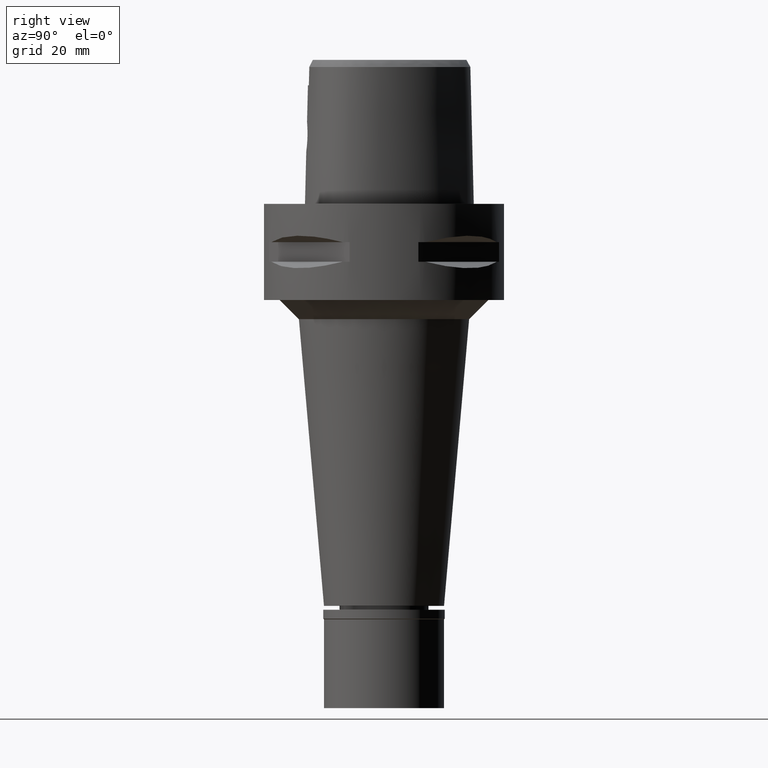
[diagram: clean part render]
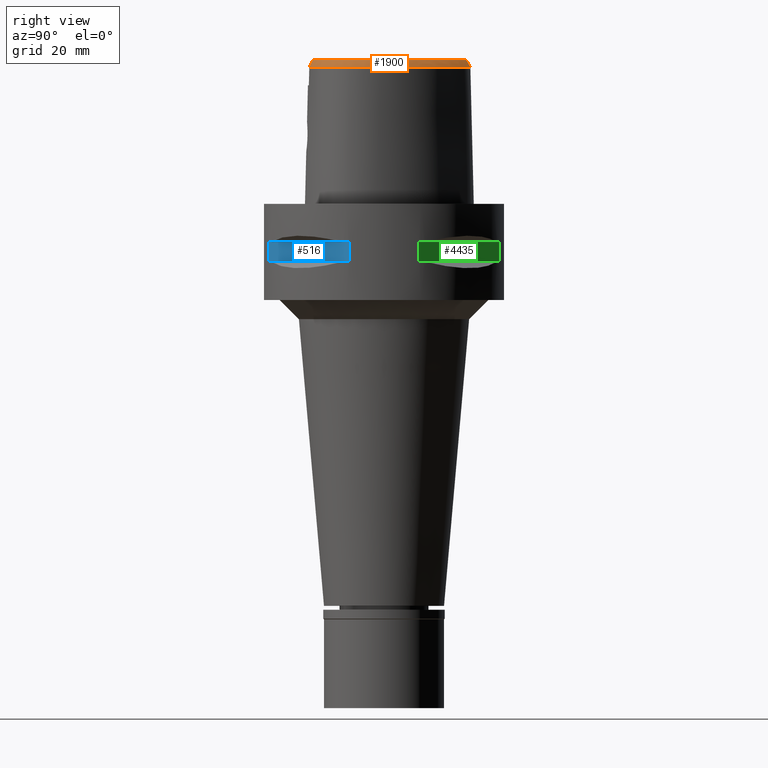
[diagram: same view with three faces highlighted in distinct colors, each labeled with its STEP entity id]
A machine part, right view with three faces highlighted in distinct colors.
Their STEP definitions:

[orange] entity #1900 — the highlighted face is a freeform B-spline surface patch.
#3 = B_SPLINE_CURVE_WITH_KNOTS ( 'NONE', 3,
 ( #450, #1910, #1174, #3045, #43, #3144, #3451, #1985, #1574, #405, #4955, #3522, #3097, #67, #4932, #1501, #4230, #2337, #3854, #1601, #4209, #4648, #1933, #1225, #3474, #1959, #15, #3500, #1551, #4549, #2767, #849, #1128, #3792, #525, #1700, #95, #899, #169, #3548, #3596, #926, #3619, #4355, #4750, #2414, #3218, #1630, #3245, #1727, #873, #2490, #1326, #3961 ),
 .UNSPECIFIED., .F., .F.,
 ( 4, 1, 1, 1, 1, 1, 1, 1, 1, 1, 1, 1, 1, 1, 1, 1, 1, 1, 1, 1, 1, 1, 1, 1, 1, 1, 1, 1, 1, 1, 1, 1, 1, 1, 1, 1, 1, 1, 1, 1, 1, 1, 1, 1, 1, 1, 1, 1, 1, 1, 1, 4 ),
 ( 0.0000000000000000000, 0.01988587058640001182, 0.03977174117009996124, 0.05965761175399997285, 0.07954348233780006439, 0.09942935292160004490, 0.1193152235055000565, 0.1392010940893000370, 0.1590869646731999376, 0.1789728352568999981, 0.1988587058408000097, 0.2187445764247000213, 0.2386304470083999707, 0.2585163175922999823, 0.2784021881761000738, 0.2982880587598999433, 0.3181739293438000660, 0.3380597999276000465, 0.3579456705113999160, 0.3778315410952000075, 0.3977174116791000191, 0.4176032822630000307, 0.4374891528466999802, 0.4573750234305999918, 0.4772608940143999723, 0.4971467645981999528, 0.5170326351820999644, 0.5369185057659000559, 0.5568043763497000365, 0.5766902469335999371, 0.5965761175174000286, 0.6164619881012000091, 0.6363478586849999896, 0.6562337292689000012, 0.6761195998528000128, 0.6960054704364999623, 0.7158913410203999739, 0.7357772116042000654, 0.7556630821880000459, 0.7755489527718999465, 0.7954348233557000381, 0.8153206939395000186, 0.8352065645232999991, 0.8550924351072000107, 0.8749783056909999912, 0.8948641762747999717, 0.9147500468586799993, 0.9346359174424899718, 0.9545217880263200394, 0.9744076586101599879, 0.9942935291939859477, 1.000000000000000000 ),
 .UNSPECIFIED. ) ;
#7 = CARTESIAN_POINT ( 'NONE',  ( 15.91430228108000122, -5.139359301686000414, 30.15407868375999811 ) ) ;
#15 = CARTESIAN_POINT ( 'NONE',  ( 16.04058509949770794, -1.654113685488216356, 30.00000000000141398 ) ) ;
#37 = CARTESIAN_POINT ( 'NONE',  ( 12.81197658943000128, -11.31650483291000064, 29.55824618713999996 ) ) ;
#43 = CARTESIAN_POINT ( 'NONE',  ( 1.774127352510726174, 16.97169788998927586, 29.99999999999994316 ) ) ;
#62 = CARTESIAN_POINT ( 'NONE',  ( 16.13409343984999822, -8.081781199147000549, 28.36658167661000007 ) ) ;
#67 = CARTESIAN_POINT ( 'NONE',  ( 8.557117433366636661, 13.07415149352891426, 30.00000000000866152 ) ) ;
#89 = CARTESIAN_POINT ( 'NONE',  ( 15.95648969127000072, 1.814829198058999893, 28.96241601011999833 ) ) ;
#95 = CARTESIAN_POINT ( 'NONE',  ( 14.76450668991128801, -8.742560395149638452, 29.99999999999834799 ) ) ;
#100 = CARTESIAN_POINT ( 'NONE',  ( 1.893775678555451591, 17.84807068955595355, 28.52071728562181363 ) ) ;
#113 = CARTESIAN_POINT ( 'NONE',  ( 3.168920890822999770, -15.55911073834000113, 28.52071374672999582 ) ) ;
#119 = CARTESIAN_POINT ( 'NONE',  ( 13.18435550465999917, 8.170105408592000629, 28.96241377043999776 ) ) ;
#139 = CARTESIAN_POINT ( 'NONE',  ( 10.97901227322000040, 11.83294304592999957, 28.36658077818000123 ) ) ;
#164 = CARTESIAN_POINT ( 'NONE',  ( 11.84929922629000032, 10.74329039526000074, 28.36658204688999874 ) ) ;
#169 = CARTESIAN_POINT ( 'NONE',  ( 14.08238499151560852, -9.704590128438134400, 29.99999999999810285 ) ) ;
#194 = CARTESIAN_POINT ( 'NONE',  ( 9.844628175403999037, 12.60407160398000137, 28.96241491580000016 ) ) ;
#212 = EDGE_CURVE ( 'NONE', #2106, #3915, #3780, .T. ) ;
#218 = CARTESIAN_POINT ( 'NONE',  ( 3.383476029290000575, 17.46870730969000007, 28.36658027637000146 ) ) ;
#241 = CARTESIAN_POINT ( 'NONE',  ( 5.215080825197000003, 15.51145568495999960, 30.15407808469000273 ) ) ;
#248 = CARTESIAN_POINT ( 'NONE',  ( 5.428381937650000211, -14.27076979755000075, 30.15407858473999880 ) ) ;
#267 = CARTESIAN_POINT ( 'NONE',  ( 3.160809015964000324, 16.83882576526000108, 29.55824595098000174 ) ) ;
#297 = CARTESIAN_POINT ( 'NONE',  ( 7.012604648593999457, 14.71247543225999976, 29.55824605892000179 ) ) ;
#351 = CARTESIAN_POINT ( 'NONE',  ( 13.13281598880000089, -10.59164594259999959, 30.15407870514999900 ) ) ;
#374 = CARTESIAN_POINT ( 'NONE',  ( 3.168920890822999770, -15.55911073834000113, 28.52071374672999582 ) ) ;
#379 = CARTESIAN_POINT ( 'NONE',  ( 10.14452914293000063, -13.75446132488999851, 28.36658104380999745 ) ) ;
#399 = CARTESIAN_POINT ( 'NONE',  ( 14.79130700836000045, -10.28435368790000126, 28.36658182771999748 ) ) ;
#405 = CARTESIAN_POINT ( 'NONE',  ( 5.258649622038655380, 15.58603480843283151, 30.00000000000263611 ) ) ;
#420 = CARTESIAN_POINT ( 'NONE',  ( 12.60044439268000005, -11.05798099779000054, 30.15407870591999995 ) ) ;
#446 = CARTESIAN_POINT ( 'NONE',  ( 15.94987067560000149, -6.600486010367999867, 29.55824620219000209 ) ) ;
#450 = CARTESIAN_POINT ( 'NONE',  ( -6.301949014264000276E-11, 17.15328888647999861, 30.00000000000000000 ) ) ;
#470 = CARTESIAN_POINT ( 'NONE',  ( 16.36010767631000107, -2.616259737226000137, 29.55824622051000006 ) ) ;
#496 = CARTESIAN_POINT ( 'NONE',  ( 13.93260368992000053, 5.340930254399999910, 30.15407859711000071 ) ) ;
#520 = CARTESIAN_POINT ( 'NONE',  ( 15.09777619041000030, 4.331318817803000876, 28.96241365072999940 ) ) ;
#525 = CARTESIAN_POINT ( 'NONE',  ( 15.29323375805110707, -7.718923543002465415, 30.00000000000203215 ) ) ;
#527 = CARTESIAN_POINT ( 'NONE',  ( 8.702202469521859385, -14.36510984286242198, 28.52071728562181363 ) ) ;
#543 = CARTESIAN_POINT ( 'NONE',  ( 15.60499018215000078, 0.4731725286960000165, 30.15407831529000049 ) ) ;
#550 = CARTESIAN_POINT ( 'NONE',  ( 5.902447799197284795, -15.16907841529120837, 28.52071728562181363 ) ) ;
#567 = CARTESIAN_POINT ( 'NONE',  ( 9.357945530369999432, 12.14659526151999991, 30.15407852067999883 ) ) ;
#577 = CARTESIAN_POINT ( 'NONE',  ( 14.26907046693000503, -10.79012245165138495, 28.52071728562181363 ) ) ;
#593 = CARTESIAN_POINT ( 'NONE',  ( -0.5038152959246000595, 17.72087689082000139, 28.96241354523999689 ) ) ;
#615 = CARTESIAN_POINT ( 'NONE',  ( 2.389428973483999741, 16.73242853384000028, 30.15407870972000026 ) ) ;
#619 = CARTESIAN_POINT ( 'NONE',  ( 2.159313520159999999, -15.74463305179000017, 28.36658222512000194 ) ) ;
#639 = CARTESIAN_POINT ( 'NONE',  ( 0.04122661012738000619, 17.74030538783000210, 28.96241393928999841 ) ) ;
#665 = CARTESIAN_POINT ( 'NONE',  ( 6.000047752153999880, 15.02174448993999967, 30.15407832633000140 ) ) ;
#670 = CARTESIAN_POINT ( 'NONE',  ( 1.921314711713999923, -14.75780509900000048, 30.15407860641999704 ) ) ;
#689 = CARTESIAN_POINT ( 'NONE',  ( 4.460649862008999378, 15.92057661127000223, 30.15407820509999937 ) ) ;
#695 = CARTESIAN_POINT ( 'NONE',  ( 2.402689161809000051, -15.05499184518000000, 29.55824647528000426 ) ) ;
#718 = CARTESIAN_POINT ( 'NONE',  ( 11.04258369411999929, -13.29902387570999878, 28.36658122038000229 ) ) ;
#743 = CARTESIAN_POINT ( 'NONE',  ( 15.21391633644000052, -7.684695556669000283, 30.15407865619999939 ) ) ;
#768 = CARTESIAN_POINT ( 'NONE',  ( 11.67631721836000125, -12.54102736115000027, 28.96241416311999828 ) ) ;
#788 = CARTESIAN_POINT ( 'NONE',  ( 14.08995125574000085, -10.57905260332000097, 28.96241371908999795 ) ) ;
#814 = CARTESIAN_POINT ( 'NONE',  ( 15.19471045176999979, -9.754247342593000525, 28.36658117308999749 ) ) ;
#844 = CARTESIAN_POINT ( 'NONE',  ( 14.53809603510999793, 5.622878141590999412, 28.96241440105999843 ) ) ;
#849 = CARTESIAN_POINT ( 'NONE',  ( 15.87349190488083650, -5.869792298897619887, 29.99999999999832312 ) ) ;
#869 = CARTESIAN_POINT ( 'NONE',  ( 14.93859902518999938, 2.841171373471999662, 30.15407869128999963 ) ) ;
#873 = CARTESIAN_POINT ( 'NONE',  ( 4.159771979225014071, -14.59766906204359316, 29.99999999999851497 ) ) ;
#896 = CARTESIAN_POINT ( 'NONE',  ( 11.04976626668999984, 10.13953577488999969, 30.15407862126999916 ) ) ;
#899 = CARTESIAN_POINT ( 'NONE',  ( 14.44767169633080606, -9.224476417585231403, 30.00000000000371259 ) ) ;
#923 = CARTESIAN_POINT ( 'NONE',  ( 16.14621040167000032, -0.5738622940973999720, 29.55824652089000182 ) ) ;
#926 = CARTESIAN_POINT ( 'NONE',  ( 12.65514534656690593, -11.12483370674301852, 30.00000000000713385 ) ) ;
#944 = CARTESIAN_POINT ( 'NONE',  ( 10.46825799353999997, 11.40252286788999925, 29.55824608668999787 ) ) ;
#963 = CARTESIAN_POINT ( 'NONE',  ( 2.406543924163999648, -14.80491841401999942, 30.00000000000000000 ) ) ;
#970 = CARTESIAN_POINT ( 'NONE',  ( -0.4664088574765000161, 17.05435606281000105, 30.15407872419000057 ) ) ;
#998 = CARTESIAN_POINT ( 'NONE',  ( 3.049475509300000109, 16.52388499305000380, 30.15407878827999966 ) ) ;
#1002 = CARTESIAN_POINT ( 'NONE',  ( 1.993461990580000176, -15.75661528648000065, 28.36658220430999933 ) ) ;
#1017 = CARTESIAN_POINT ( 'NONE',  ( 8.497542471117998986, 13.01162469015999967, 30.15407844522000147 ) ) ;
#1021 = CARTESIAN_POINT ( 'NONE',  ( 7.862478987798000141, -13.94903460971000086, 29.55824710405000033 ) ) ;
#1040 = CARTESIAN_POINT ( 'NONE',  ( 7.214083366962999122, 14.97885317438000108, 28.96241336721000081 ) ) ;
#1069 = CARTESIAN_POINT ( 'NONE',  ( 8.958303088264999658, 13.49521523592999905, 28.96241542395000224 ) ) ;
#1084 = LINE ( 'NONE', #3352, #4738 ) ;
#1096 = CARTESIAN_POINT ( 'NONE',  ( 16.38070149625000127, -7.453169724490000370, 28.36658156601999892 ) ) ;
#1120 = CARTESIAN_POINT ( 'NONE',  ( 15.26129976988999992, -9.045301807557001084, 28.96241384740999791 ) ) ;
#1128 = CARTESIAN_POINT ( 'NONE',  ( 15.71128456931854878, -6.534031654963371238, 30.00000000000700595 ) ) ;
#1146 = CARTESIAN_POINT ( 'NONE',  ( 16.11594076741999615, -5.920336784746999648, 29.55824617406000243 ) ) ;
#1170 = CARTESIAN_POINT ( 'NONE',  ( 15.85639389654000198, -8.667834654316999732, 28.36658093752999932 ) ) ;
#1174 = CARTESIAN_POINT ( 'NONE',  ( 0.5691917915716266929, 17.14006060249510455, 30.00000000000938627 ) ) ;
#1191 = CARTESIAN_POINT ( 'NONE',  ( 13.36076634381999995, -10.83582889382999959, 29.55824618934000014 ) ) ;
#1219 = CARTESIAN_POINT ( 'NONE',  ( 16.69376750319000280, -2.601106877469999912, 28.96241374674999847 ) ) ;
#1225 = CARTESIAN_POINT ( 'NONE',  ( 15.39668103801475496, 1.657188505494441966, 30.00000000000181899 ) ) ;
#1247 = CARTESIAN_POINT ( 'NONE',  ( 15.93098836738999680, 0.5457449380141000672, 29.55824730707999848 ) ) ;
#1255 = CARTESIAN_POINT ( 'NONE',  ( 3.168920890822999770, -15.55911073834000113, 28.52071374672999582 ) ) ;
#1271 = CARTESIAN_POINT ( 'NONE',  ( 16.37308080689999912, -3.537239819178999767, 29.55824629298999895 ) ) ;
#1294 = CARTESIAN_POINT ( 'NONE',  ( 15.95468759978999707, -1.663126806178000017, 30.15407874414999867 ) ) ;
#1322 = CARTESIAN_POINT ( 'NONE',  ( 11.58278823975999927, 10.54203885513999950, 28.96241423835000006 ) ) ;
#1326 = CARTESIAN_POINT ( 'NONE',  ( 2.538962679605336614, -14.79292722369346436, 30.00000000000666844 ) ) ;
#1329 = CARTESIAN_POINT ( 'NONE',  ( 16.99625257117403265, -3.273868232426961900, 28.52071728562181363 ) ) ;
#1336 = ORIENTED_EDGE ( 'NONE', *, *, #1469, .T. ) ;
#1344 = CARTESIAN_POINT ( 'NONE',  ( 1.756358066223999925, 16.88715977208000041, 30.15407866062999886 ) ) ;
#1362 = CARTESIAN_POINT ( 'NONE',  ( 7.861473047930999769, 14.03242588091999998, 29.55824637717999792 ) ) ;
#1371 = CARTESIAN_POINT ( 'NONE',  ( 1.969412897624000180, -15.42367855732000059, 28.96241433835000123 ) ) ;
#1394 = CARTESIAN_POINT ( 'NONE',  ( 0.5631390755234999546, 17.05388319361000171, 30.15407871233000137 ) ) ;
#1399 = CARTESIAN_POINT ( 'NONE',  ( 7.968578480114000939, -14.26571451727999928, 28.96241582199999698 ) ) ;
#1419 = CARTESIAN_POINT ( 'NONE',  ( 6.185542694173999934, 15.29949969616999894, 29.55824727542999852 ) ) ;
#1425 = CARTESIAN_POINT ( 'NONE',  ( 8.908154874860001016, -13.56419839624000012, 29.55824622800999890 ) ) ;
#1445 = CARTESIAN_POINT ( 'NONE',  ( 5.552047647558000065, 16.08826046437000201, 28.96241785176000150 ) ) ;
#1451 = CARTESIAN_POINT ( 'NONE',  ( 2.462229345737000141, -15.71997111639000089, 28.36658221499000021 ) ) ;
#1469 = EDGE_CURVE ( 'NONE', #1884, #2774, #1084, .T. ) ;
#1476 = CARTESIAN_POINT ( 'NONE',  ( 5.569394667004999633, -14.92365235324999873, 28.96241448438000177 ) ) ;
#1494 = CARTESIAN_POINT ( 'NONE',  ( 14.37720430538999850, -9.174503675729001273, 30.15407870369999799 ) ) ;
#1501 = CARTESIAN_POINT ( 'NONE',  ( 10.27891984617860821, 11.24296481357842303, 29.99999999999540279 ) ) ;
#1515 = CARTESIAN_POINT ( 'NONE',  ( 14.69073428896999900, -8.697604131147999240, 30.15407867931999775 ) ) ;
#1543 = CARTESIAN_POINT ( 'NONE',  ( 16.24503527206000086, -5.186198137593000190, 29.55824625062999900 ) ) ;
#1551 = CARTESIAN_POINT ( 'NONE',  ( 16.12546998862469394, -3.533461825553787072, 30.00000000000701661 ) ) ;
#1559 = ORIENTED_EDGE ( 'NONE', *, *, #1621, .T. ) ;
#1569 = CARTESIAN_POINT ( 'NONE',  ( 13.02350878617999896, -11.57502866801999986, 28.96241366834999909 ) ) ;
#1574 = CARTESIAN_POINT ( 'NONE',  ( 4.499552315895782861, 15.99769543814334760, 30.00000000000113332 ) ) ;
#1595 = CARTESIAN_POINT ( 'NONE',  ( 15.78892849896999806, -5.852162957070000004, 30.15407871046999944 ) ) ;
#1601 = CARTESIAN_POINT ( 'NONE',  ( 13.38374903490633017, 6.636915464740512860, 30.00000000000369482 ) ) ;
#1621 = EDGE_CURVE ( 'NONE', #2774, #3915, #3, .T. ) ;
#1625 = CARTESIAN_POINT ( 'NONE',  ( 15.31355099840000022, 1.633779297828000132, 30.15407835817000048 ) ) ;
#1630 = CARTESIAN_POINT ( 'NONE',  ( 7.783816186093504896, -13.71424622166772878, 30.00000000000591527 ) ) ;
#1635 = CARTESIAN_POINT ( 'NONE',  ( 15.58740368722525993, -8.999391713747247223, 28.52071728562181363 ) ) ;
#1644 = CARTESIAN_POINT ( 'NONE',  ( 2.935843368221050742, -15.25651436817058304, 29.10537844849506328 ) ) ;
#1649 = CARTESIAN_POINT ( 'NONE',  ( 13.47058952121999909, 8.342147043526999539, 28.36658131027999730 ) ) ;
#1670 = CARTESIAN_POINT ( 'NONE',  ( 16.28685889694999744, -1.628272473965999945, 29.55824607750999888 ) ) ;
#1697 = CARTESIAN_POINT ( 'NONE',  ( 12.40867009011000199, 9.386625274047000644, 28.96241457396999763 ) ) ;
#1700 = CARTESIAN_POINT ( 'NONE',  ( 15.04259016984798336, -8.247723288182914558, 30.00000000000509459 ) ) ;
#1722 = CARTESIAN_POINT ( 'NONE',  ( 6.811125930223999703, 14.44609769012999934, 30.15407875062999921 ) ) ;
#1727 = CARTESIAN_POINT ( 'NONE',  ( 5.446614459517546969, -14.35518554872550112, 30.00000000000447642 ) ) ;
#1744 = CARTESIAN_POINT ( 'NONE',  ( 2.570269608630999958, 17.37558561570999771, 28.96241364277999963 ) ) ;
#1767 = CARTESIAN_POINT ( 'NONE',  ( 3.272142522627000449, 17.15376653747999924, 28.96241311366999938 ) ) ;
#1773 = CARTESIAN_POINT ( 'NONE',  ( 6.811844329970999645, -14.61865163763999931, 28.96241629070999934 ) ) ;
#1798 = CARTESIAN_POINT ( 'NONE',  ( 9.188683396838001727, 13.73701050881000008, 28.36658391331999951 ) ) ;
#1804 = CARTESIAN_POINT ( 'NONE',  ( 4.198902476121999072, -14.84216049075999955, 29.55824607314000119 ) ) ;
#1826 = CARTESIAN_POINT ( 'NONE',  ( 1.288469511060999828, 17.98539265883000127, 28.36658101920999897 ) ) ;
#1830 = CARTESIAN_POINT ( 'NONE',  ( 2.372919069846000095, -14.72250220956999911, 30.15407860542000051 ) ) ;
#1856 = ORIENTED_EDGE ( 'NONE', *, *, #2583, .F. ) ;
#1883 = CARTESIAN_POINT ( 'NONE',  ( 13.81666705385000071, -11.32419479630999959, 28.36658115774000066 ) ) ;
#1884 = VERTEX_POINT ( 'NONE', #2590 ) ;
#1900 = ADVANCED_FACE ( 'NONE', ( #2907 ), #2924, .F. ) ;
#1904 = CARTESIAN_POINT ( 'NONE',  ( 10.88296552541000040, -13.00562535788999874, 28.96241371332999748 ) ) ;
#1910 = CARTESIAN_POINT ( 'NONE',  ( 0.1912597614439600635, 17.15328888648557637, 30.00000000000241229 ) ) ;
#1925 = CARTESIAN_POINT ( 'NONE',  ( 14.96582490842000190, -8.208094618771999862, 30.15407872591999805 ) ) ;
#1933 = CARTESIAN_POINT ( 'NONE',  ( 15.02033012161492920, 2.869071121502117627, 30.00000000000621014 ) ) ;
#1954 = CARTESIAN_POINT ( 'NONE',  ( 9.718987881621000469, -12.84732019325000074, 30.15407871589000166 ) ) ;
#1959 = CARTESIAN_POINT ( 'NONE',  ( 15.90185233182547009, -0.6139199331565184936, 29.99999999999838707 ) ) ;
#1979 = CARTESIAN_POINT ( 'NONE',  ( 12.38812374618999890, -12.06281744228000008, 28.96241427910000255 ) ) ;
#1985 = CARTESIAN_POINT ( 'NONE',  ( 3.772905803807292013, 16.33508552419415594, 30.00000000000188294 ) ) ;
#2004 = CARTESIAN_POINT ( 'NONE',  ( 12.89812148811000014, 7.998063773655999853, 29.55824623060000178 ) ) ;
#2014 = CARTESIAN_POINT ( 'NONE',  ( 13.75951381385860905, 7.944084035686260314, 28.52071728562181363 ) ) ;
#2033 = CARTESIAN_POINT ( 'NONE',  ( 14.23534986251999968, 5.481904197996000150, 29.55824649909000357 ) ) ;
#2057 = CARTESIAN_POINT ( 'NONE',  ( 14.78797335495000098, 4.206605546866000189, 29.55824617963000023 ) ) ;
#2065 = CARTESIAN_POINT ( 'NONE',  ( 3.738627708318751353, -15.49270856215235703, 28.52071728562181363 ) ) ;
#2079 = CARTESIAN_POINT ( 'NONE',  ( 13.30749001700000100, 6.596386971987000081, 30.15407865690999856 ) ) ;
#2104 = CARTESIAN_POINT ( 'NONE',  ( 11.31627725322000089, 10.34078731500999915, 29.55824642981000494 ) ) ;
#2106 = VERTEX_POINT ( 'NONE', #374 ) ;
#2154 = CARTESIAN_POINT ( 'NONE',  ( 1.893788070486999819, 17.54098872825000299, 28.96241397330000211 ) ) ;
#2160 = CARTESIAN_POINT ( 'NONE',  ( 3.159662705975999852, -14.98063178832999931, 29.55824639852000146 ) ) ;
#2185 = CARTESIAN_POINT ( 'NONE',  ( 4.251681245310000357, -15.17192774925000087, 28.96241340061000358 ) ) ;
#2206 = CARTESIAN_POINT ( 'NONE',  ( 4.133094771460999794, 17.17698384790000077, 28.36658225872000116 ) ) ;
#2229 = CARTESIAN_POINT ( 'NONE',  ( 4.611088217191000815, 16.21880020154000235, 29.55824762300000330 ) ) ;
#2257 = CARTESIAN_POINT ( 'NONE',  ( 14.33363786215999980, -10.80754698553000104, 28.36658122945000216 ) ) ;
#2284 = CARTESIAN_POINT ( 'NONE',  ( 10.56372918797999994, -12.41882832223999955, 30.15407869922999851 ) ) ;
#2308 = CARTESIAN_POINT ( 'NONE',  ( 12.58270304915000004, -12.33431788868000112, 28.36658211105000049 ) ) ;
#2329 = CARTESIAN_POINT ( 'NONE',  ( 16.57576826304999784, -5.233036973501000055, 28.96241381748999899 ) ) ;
#2337 = CARTESIAN_POINT ( 'NONE',  ( 11.92667412981768393, 9.061218325782252947, 29.99999999999914380 ) ) ;
#2357 = CARTESIAN_POINT ( 'NONE',  ( 15.54658251034999950, -9.219150645760999296, 28.36658143146000199 ) ) ;
#2385 = CARTESIAN_POINT ( 'NONE',  ( 16.95120149128000264, -1.558563809543999978, 28.36658074421000109 ) ) ;
#2393 = CARTESIAN_POINT ( 'NONE',  ( 4.422474504766133130, 17.08283549833607395, 28.52071728562181363 ) ) ;
#2409 = CARTESIAN_POINT ( 'NONE',  ( 16.33260288691000284, -4.393036603344000035, 29.55824649973000007 ) ) ;
#2414 = CARTESIAN_POINT ( 'NONE',  ( 9.755668685252240735, -12.92551394022894584, 30.00000000000078515 ) ) ;
#2439 = CARTESIAN_POINT ( 'NONE',  ( 15.25465856603999981, 2.949061539368999618, 29.55824622907999810 ) ) ;
#2450 = CARTESIAN_POINT ( 'NONE',  ( 7.523733068098669818, 15.26501041873698483, 28.52071728562181363 ) ) ;
#2463 = CARTESIAN_POINT ( 'NONE',  ( 16.80538517277999944, -0.4658037181134999649, 28.36658238365999907 ) ) ;
#2472 = CARTESIAN_POINT ( 'NONE',  ( 16.79165444020004472, -0.3537785292841048035, 28.52071728562181363 ) ) ;
#2485 = CARTESIAN_POINT ( 'NONE',  ( 10.72363513338000018, 11.61773295691000030, 28.96241343243000088 ) ) ;
#2490 = CARTESIAN_POINT ( 'NONE',  ( 3.130495111450621426, -14.73481892791945924, 30.00000000000507328 ) ) ;
#2510 = CARTESIAN_POINT ( 'NONE',  ( -0.4851120767006000256, 17.38761647681999989, 29.55824613472000095 ) ) ;
#2512 = ORIENTED_EDGE ( 'NONE', *, *, #212, .F. ) ;
#2513 = EDGE_LOOP ( 'NONE', ( #1856, #1336, #1559, #2512 ) ) ;
#2517 = CARTESIAN_POINT ( 'NONE',  ( 6.723575657282999885, -14.29655344475000156, 29.55824730359999819 ) ) ;
#2537 = CARTESIAN_POINT ( 'NONE',  ( -0.3196720322078999699, 17.39632754707999851, 29.55824623296999931 ) ) ;
#2542 = CARTESIAN_POINT ( 'NONE',  ( 2.081109065820999859, -14.74626039319000093, 30.15407860445999688 ) ) ;
#2560 = CARTESIAN_POINT ( 'NONE',  ( 0.6099515799626000767, 17.72039064241999995, 28.96241362521000084 ) ) ;
#2564 = CARTESIAN_POINT ( 'NONE',  ( 3.238344545530000396, -15.64373096935999996, 28.36658193118000071 ) ) ;
#2583 = EDGE_CURVE ( 'NONE', #1884, #2106, #2696, .T. ) ;
#2586 = CARTESIAN_POINT ( 'NONE',  ( 5.720531058737999608, 16.37666285407000188, 28.36658773530000133 ) ) ;
#2590 = CARTESIAN_POINT ( 'NONE',  ( -3.094717981753000019E-11, 17.98202997909999823, 28.52071728569000086 ) ) ;
#2613 = CARTESIAN_POINT ( 'NONE',  ( 7.645027304632999510, 13.77807092775999820, 30.15407863963000068 ) ) ;
#2618 = CARTESIAN_POINT ( 'NONE',  ( 2.133245368714000278, -15.41184216559000042, 28.96241435156999700 ) ) ;
#2638 = CARTESIAN_POINT ( 'NONE',  ( 12.19354444322000042, -11.79131699587999904, 29.55824644716000194 ) ) ;
#2659 = CARTESIAN_POINT ( 'NONE',  ( 15.26268123778999986, -8.361341297286999819, 29.55824612979000321 ) ) ;
#2689 = CARTESIAN_POINT ( 'NONE',  ( 16.44295303587999868, -5.988510612424000179, 28.96241363765000187 ) ) ;
#2696 = B_SPLINE_CURVE_WITH_KNOTS ( 'NONE', 3,
 ( #3909, #4652, #100, #2393, #2450, #3250, #2014, #3552, #2472, #1329, #4309, #3984, #2867, #1635, #3964, #577, #4382, #4678, #527, #550, #2065, #1255 ),
 .UNSPECIFIED., .F., .F.,
 ( 4, 1, 1, 1, 1, 1, 1, 1, 1, 1, 1, 1, 1, 1, 1, 1, 1, 1, 1, 4 ),
 ( 0.0000000000000000000, 0.04404152929334096550, 0.08808305858551911116, 0.1761661171698756245, 0.2642491757542321240, 0.3523322343385886790, 0.4404152929230508162, 0.5284983515074073157, 0.5725398807995856210, 0.6165814100917637042, 0.6606229393839421205, 0.6826437040300311621, 0.7046644686762260079, 0.7266852333222094673, 0.7487059979682985089, 0.7927475272605825074, 0.8367890565527607016, 0.8808305858448333137, 0.9689136444292953954, 1.000000000000000000 ),
 .UNSPECIFIED. ) ;
#2710 = CARTESIAN_POINT ( 'NONE',  ( 16.90650125403000104, -5.279875809408000720, 28.36658138435999987 ) ) ;
#2732 = CARTESIAN_POINT ( 'NONE',  ( 13.60257804291000028, -10.12206383890000083, 30.15407869837999755 ) ) ;
#2758 = CARTESIAN_POINT ( 'NONE',  ( 15.81662301611999943, -0.6278915820893998800, 30.15407858950000275 ) ) ;
#2767 = CARTESIAN_POINT ( 'NONE',  ( 15.99982784345999676, -5.151471542954396021, 29.99999999999570477 ) ) ;
#2774 = VERTEX_POINT ( 'NONE', #4432 ) ;
#2785 = CARTESIAN_POINT ( 'NONE',  ( 16.61903019410999960, -1.593418141754999962, 28.96241341086000176 ) ) ;
#2808 = CARTESIAN_POINT ( 'NONE',  ( 11.85509906030000060, 9.012896292276002086, 30.15407857143000214 ) ) ;
#2836 = CARTESIAN_POINT ( 'NONE',  ( 13.89728732156999946, 6.909839681453999738, 28.96241399838000063 ) ) ;
#2860 = CARTESIAN_POINT ( 'NONE',  ( 10.21288085369999976, 11.18731277887000175, 30.15407874094000107 ) ) ;
#2867 = CARTESIAN_POINT ( 'NONE',  ( 16.01658383235081473, -8.155509186612112771, 28.52071728562181363 ) ) ;
#2878 = CARTESIAN_POINT ( 'NONE',  ( 0.6333578321821999868, 18.05364436682999596, 28.36658108166000147 ) ) ;
#2901 = CARTESIAN_POINT ( 'NONE',  ( 1.195825604152999988, 17.32371662835999970, 29.55824615188000237 ) ) ;
#2907 = FACE_OUTER_BOUND ( 'NONE', #2513, .T. ) ;
#2924 = B_SPLINE_SURFACE_WITH_KNOTS ( 'NONE', 3, 3, ( 
 ( #670, #3296, #1371, #1002 ),
 ( #2542, #3713, #2618, #619 ),
 ( #1830, #695, #3689, #1451 ),
 ( #4102, #2160, #3760, #2564 ),
 ( #3369, #1804, #2185, #3393 ),
 ( #248, #3018, #1476, #3345 ),
 ( #4473, #2517, #1773, #3320 ),
 ( #4818, #1021, #1399, #2989 ),
 ( #4844, #1425, #2961, #3739 ),
 ( #1954, #3423, #3493, #379 ),
 ( #2284, #4594, #1904, #718 ),
 ( #3113, #3848, #768, #3827 ),
 ( #4226, #2638, #1979, #2308 ),
 ( #420, #37, #1569, #4618 ),
 ( #351, #1191, #4150, #1883 ),
 ( #2732, #4176, #788, #2257 ),
 ( #3785, #4541, #4925, #399 ),
 ( #1494, #3037, #4249, #814 ),
 ( #1515, #3443, #1120, #2357 ),
 ( #1925, #2659, #4521, #1170 ),
 ( #743, #3875, #3061, #62 ),
 ( #3466, #4946, #3091, #1096 ),
 ( #3810, #446, #3517, #4566 ),
 ( #1595, #1146, #2689, #4203 ),
 ( #7, #1543, #2329, #2710 ),
 ( #4302, #2409, #3927, #3165 ),
 ( #4691, #1271, #4670, #4350 ),
 ( #3542, #470, #1219, #4742 ),
 ( #1294, #1670, #2785, #2385 ),
 ( #2758, #923, #3214, #2463 ),
 ( #543, #1247, #3955, #3899 ),
 ( #1625, #3241, #89, #4279 ),
 ( #869, #2439, #3978, #4642 ),
 ( #3592, #2057, #520, #4373 ),
 ( #496, #2033, #844, #4714 ),
 ( #2079, #3999, #2836, #3569 ),
 ( #4324, #2004, #119, #1649 ),
 ( #2808, #3614, #1697, #3191 ),
 ( #896, #2104, #1322, #164 ),
 ( #2860, #944, #2485, #139 ),
 ( #567, #3640, #194, #3139 ),
 ( #1017, #4786, #1069, #1798 ),
 ( #2613, #1362, #3314, #4094 ),
 ( #1722, #297, #1040, #2935 ),
 ( #665, #1419, #4765, #4123 ),
 ( #241, #3342, #1445, #2586 ),
 ( #689, #2229, #4395, #3757 ),
 ( #4023, #3707, #4840, #2206 ),
 ( #998, #267, #1767, #218 ),
 ( #615, #3735, #1744, #3684 ),
 ( #1344, #4813, #2154, #3288 ),
 ( #2984, #2901, #4448, #1826 ),
 ( #1394, #3364, #2560, #2878 ),
 ( #3266, #4071, #639, #2957 ),
 ( #4421, #2537, #4864, #4494 ),
 ( #970, #2510, #593, #4050 ) ),
 .UNSPECIFIED., .F., .F., .F.,
 ( 4, 1, 1, 1, 1, 1, 1, 1, 1, 1, 1, 1, 1, 1, 1, 1, 1, 1, 1, 1, 1, 1, 1, 1, 1, 1, 1, 1, 1, 1, 1, 1, 1, 1, 1, 1, 1, 1, 1, 1, 1, 1, 1, 1, 1, 1, 1, 1, 1, 1, 1, 1, 1, 4 ),
 ( 4, 4 ),
 ( -0.006850724150829000207, 0.0000000000000000000, 0.005706470806014000280, 0.02559234138984000165, 0.04547821197368000223, 0.06536408255751000040, 0.08524995314132000068, 0.1051358237252000005, 0.1250216943090000088, 0.1449075648927999893, 0.1647934354767000009, 0.1846793060604999814, 0.2045651766443000175, 0.2244510472280999980, 0.2443369178119999818, 0.2642227883957999901, 0.2841086589796000261, 0.3039945295635000377, 0.3238804001471999872, 0.3437662707310999988, 0.3636521413150000104, 0.3835380118987999909, 0.4034238824826000269, 0.4233097530664000074, 0.4431956236502999635, 0.4630814942340999996, 0.4829673648179000356, 0.5028532354018000472, 0.5227391059856000277, 0.5426249765694000082, 0.5625108471533000198, 0.5823967177369999693, 0.6022825883208999809, 0.6221684589047999925, 0.6420543294886000840, 0.6619402000723999535, 0.6818260706561999340, 0.7017119412401000567, 0.7215978118238999262, 0.7414836824077000177, 0.7613695529916000293, 0.7812554235752999787, 0.8011412941591999903, 0.8210271647431000019, 0.8409130353268000624, 0.8607989059106999630, 0.8806847764944999435, 0.9005706470783999551, 0.9204565176621999356, 0.9403423882460000272, 0.9602282588299000388, 0.9801141294135999882, 1.000000000000000000, 1.016057694064999906 ),
 ( -0.08092028944699999893, 1.080951960108999854 ),
 .UNSPECIFIED. ) ;
#2935 = CARTESIAN_POINT ( 'NONE',  ( 7.415562085332999764, 15.24523091649999884, 28.36658067549999984 ) ) ;
#2957 = CARTESIAN_POINT ( 'NONE',  ( 0.04269411071820999881, 18.07433181569999903, 28.36658157608999886 ) ) ;
#2961 = CARTESIAN_POINT ( 'NONE',  ( 9.032121210748000451, -13.87432928812000021, 28.96241376434999992 ) ) ;
#2984 = CARTESIAN_POINT ( 'NONE',  ( 1.149503650699000179, 16.99287861312999937, 30.15407871821999919 ) ) ;
#2989 = CARTESIAN_POINT ( 'NONE',  ( 8.074677972428998984, -14.58239442485000126, 28.36658453995000073 ) ) ;
#3018 = CARTESIAN_POINT ( 'NONE',  ( 5.498888302326999877, -14.59721107539999885, 29.55824653455999851 ) ) ;
#3037 = CARTESIAN_POINT ( 'NONE',  ( 14.64970635417999922, -9.367751564683999277, 29.55824619349000315 ) ) ;
#3045 = CARTESIAN_POINT ( 'NONE',  ( 1.161482229273651967, 17.07843133414920800, 30.00000000000861178 ) ) ;
#3061 = CARTESIAN_POINT ( 'NONE',  ( 15.82736773871000047, -7.949419318321000461, 28.96241400313999748 ) ) ;
#3091 = CARTESIAN_POINT ( 'NONE',  ( 16.06565146180000170, -7.342082356605000193, 28.96241393289000143 ) ) ;
#3097 = CARTESIAN_POINT ( 'NONE',  ( 7.700998872106244342, 13.84384558891077788, 30.00000000000272848 ) ) ;
#3113 = CARTESIAN_POINT ( 'NONE',  ( 11.32182307295000001, -11.97480960790000104, 30.15407863243999742 ) ) ;
#3139 = CARTESIAN_POINT ( 'NONE',  ( 10.08796949791999964, 12.83280977521000032, 28.36658311336999816 ) ) ;
#3144 = CARTESIAN_POINT ( 'NONE',  ( 2.412811123804576408, 16.81558681049573423, 30.00000000000860467 ) ) ;
#3165 = CARTESIAN_POINT ( 'NONE',  ( 16.99865597423999830, -4.444598022455999775, 28.36658230539999792 ) ) ;
#3185 = CARTESIAN_POINT ( 'NONE',  ( 2.674237079599435241, -15.00654560863690179, 29.59847386625172661 ) ) ;
#3191 = CARTESIAN_POINT ( 'NONE',  ( 12.68545560500999869, 9.573489764931998991, 28.36658257524000248 ) ) ;
#3214 = CARTESIAN_POINT ( 'NONE',  ( 16.47579778721999944, -0.5198330061054999840, 28.96241445227000000 ) ) ;
#3218 = CARTESIAN_POINT ( 'NONE',  ( 8.816245487876816611, -13.33426548781725174, 30.00000000000341771 ) ) ;
#3241 = CARTESIAN_POINT ( 'NONE',  ( 15.63502034483999914, 1.724304247942999968, 29.55824718414000074 ) ) ;
#3245 = CARTESIAN_POINT ( 'NONE',  ( 6.658132732488456718, -14.05774790739256197, 29.99999999999906208 ) ) ;
#3250 = CARTESIAN_POINT ( 'NONE',  ( 10.91764517732670825, 11.98972036053689827, 28.52071728562181363 ) ) ;
#3266 = CARTESIAN_POINT ( 'NONE',  ( 0.03829160894571999318, 17.07225253208999760, 30.15407866567999662 ) ) ;
#3288 = CARTESIAN_POINT ( 'NONE',  ( 1.962503072618000166, 17.86790320632999851, 28.36658162962999796 ) ) ;
#3296 = CARTESIAN_POINT ( 'NONE',  ( 1.945363804668999830, -15.09074182816000054, 29.55824647239000313 ) ) ;
#3314 = CARTESIAN_POINT ( 'NONE',  ( 8.077918791227999051, 14.28678083407999999, 28.96241411472999872 ) ) ;
#3320 = CARTESIAN_POINT ( 'NONE',  ( 6.900113002658000205, -14.94074983052000150, 28.36658527780999961 ) ) ;
#3342 = CARTESIAN_POINT ( 'NONE',  ( 5.383564236376999546, 15.79985807466000125, 29.55824796823000256 ) ) ;
#3345 = CARTESIAN_POINT ( 'NONE',  ( 5.639901031682000188, -15.25009363110000038, 28.36658243420000147 ) ) ;
#3352 = CARTESIAN_POINT ( 'NONE',  ( -3.094717981753000019E-11, 17.98202997909999823, 28.52071728569000086 ) ) ;
#3364 = CARTESIAN_POINT ( 'NONE',  ( 0.5865453277431000867, 17.38713691802000127, 29.55824616877000111 ) ) ;
#3369 = CARTESIAN_POINT ( 'NONE',  ( 4.146123706933999564, -14.51239323228000089, 30.15407874566999880 ) ) ;
#3393 = CARTESIAN_POINT ( 'NONE',  ( 4.304460014498000753, -15.50169500773999864, 28.36658072808000242 ) ) ;
#3423 = CARTESIAN_POINT ( 'NONE',  ( 9.860834968724999428, -13.14970057047000118, 29.55824615853000026 ) ) ;
#3443 = CARTESIAN_POINT ( 'NONE',  ( 14.97601702943000035, -8.871452969352999318, 29.55824626336999827 ) ) ;
#3451 = CARTESIAN_POINT ( 'NONE',  ( 3.078265684543572078, 16.60532678263331618, 29.99999999999977263 ) ) ;
#3466 = CARTESIAN_POINT ( 'NONE',  ( 15.43555139291999900, -7.119907620833000550, 30.15407866662999936 ) ) ;
#3474 = CARTESIAN_POINT ( 'NONE',  ( 15.68929135224160554, 0.4919393172821490690, 30.00000000000165556 ) ) ;
#3493 = CARTESIAN_POINT ( 'NONE',  ( 10.00268205582999848, -13.45208094768000073, 28.96241360117000241 ) ) ;
#3500 = CARTESIAN_POINT ( 'NONE',  ( 16.11273027397101032, -2.627494158581119787, 29.99999999999924327 ) ) ;
#3517 = CARTESIAN_POINT ( 'NONE',  ( 16.27167290233999708, -6.690118889159999860, 28.96241370371999935 ) ) ;
#3522 = CARTESIAN_POINT ( 'NONE',  ( 6.863227115065241968, 14.51498137220099238, 29.99999999999868550 ) ) ;
#3542 = CARTESIAN_POINT ( 'NONE',  ( 16.02644784942999934, -2.631412596981999918, 30.15407869427000165 ) ) ;
#3548 = CARTESIAN_POINT ( 'NONE',  ( 13.66559393375280074, -10.18115111193322875, 30.00000000000255795 ) ) ;
#3552 = CARTESIAN_POINT ( 'NONE',  ( 15.84228676733575192, 3.460033425849186273, 28.52071728562181363 ) ) ;
#3569 = CARTESIAN_POINT ( 'NONE',  ( 14.19218597385000002, 7.066566036186999078, 28.36658166910999768 ) ) ;
#3592 = CARTESIAN_POINT ( 'NONE',  ( 14.47817051949000167, 4.081892275929000391, 30.15407870853000105 ) ) ;
#3596 = CARTESIAN_POINT ( 'NONE',  ( 13.19176257967356491, -10.65479018522814414, 30.00000000000557776 ) ) ;
#3603 = CARTESIAN_POINT ( 'NONE',  ( 2.406543924163999648, -14.80491841401999942, 30.00000000000000000 ) ) ;
#3614 = CARTESIAN_POINT ( 'NONE',  ( 12.13188457520999997, 9.199760783160998656, 29.55824657269999989 ) ) ;
#3619 = CARTESIAN_POINT ( 'NONE',  ( 12.04928217776314092, -11.59002493206656759, 30.00000000000142819 ) ) ;
#3640 = CARTESIAN_POINT ( 'NONE',  ( 9.601286852887000123, 12.37533343274999886, 29.55824671823999950 ) ) ;
#3684 = CARTESIAN_POINT ( 'NONE',  ( 2.660689926205000333, 17.69716415663999953, 28.36658110931999843 ) ) ;
#3689 = CARTESIAN_POINT ( 'NONE',  ( 2.432459253773000096, -15.38748148078999911, 28.96241434513000002 ) ) ;
#3707 = CARTESIAN_POINT ( 'NONE',  ( 3.870317958548000092, 16.56277470168000221, 29.55824648710000346 ) ) ;
#3713 = CARTESIAN_POINT ( 'NONE',  ( 2.107177217268000113, -15.07905127938999890, 29.55824647802000271 ) ) ;
#3735 = CARTESIAN_POINT ( 'NONE',  ( 2.479849291057999672, 17.05400707477999589, 29.55824617625000172 ) ) ;
#3739 = CARTESIAN_POINT ( 'NONE',  ( 9.156087546636999974, -14.18446018000000031, 28.36658130069999828 ) ) ;
#3757 = CARTESIAN_POINT ( 'NONE',  ( 4.911964927556000227, 16.81524738206000080, 28.36658645879000318 ) ) ;
#3760 = CARTESIAN_POINT ( 'NONE',  ( 3.199003625752999902, -15.31218137884000008, 28.96241416484999931 ) ) ;
#3780 = B_SPLINE_CURVE_WITH_KNOTS ( 'NONE', 3,
 ( #113, #1644, #3185, #963 ),
 .UNSPECIFIED., .F., .F.,
 ( 4, 4 ),
 ( 0.0000000000000000000, 1.000000000000000000 ),
 .UNSPECIFIED. ) ;
#3785 = CARTESIAN_POINT ( 'NONE',  ( 14.01551311299000169, -9.649901633227999653, 30.15407864193999998 ) ) ;
#3792 = CARTESIAN_POINT ( 'NONE',  ( 15.51702143705866987, -7.148634146068926221, 30.00000000000034817 ) ) ;
#3810 = CARTESIAN_POINT ( 'NONE',  ( 15.62806844885999880, -6.510853131575999875, 30.15407870066999863 ) ) ;
#3827 = CARTESIAN_POINT ( 'NONE',  ( 11.85356429105999965, -12.82413623777000033, 28.36658192846000048 ) ) ;
#3848 = CARTESIAN_POINT ( 'NONE',  ( 11.49907014564999841, -12.25791848451999932, 29.55824639777999963 ) ) ;
#3854 = CARTESIAN_POINT ( 'NONE',  ( 12.68590586676939402, 7.870511070825140898, 30.00000000000611422 ) ) ;
#3875 = CARTESIAN_POINT ( 'NONE',  ( 15.52064203758000183, -7.817057437494999483, 29.55824632966999843 ) ) ;
#3899 = CARTESIAN_POINT ( 'NONE',  ( 16.58298473788000038, 0.6908897566503000576, 28.36658529065999801 ) ) ;
#3909 = CARTESIAN_POINT ( 'NONE',  ( -3.094717981753000019E-11, 17.98202997909999823, 28.52071728569000086 ) ) ;
#3915 = VERTEX_POINT ( 'NONE', #3603 ) ;
#3927 = CARTESIAN_POINT ( 'NONE',  ( 16.66562943056999657, -4.418817312899999905, 28.96241440256000033 ) ) ;
#3955 = CARTESIAN_POINT ( 'NONE',  ( 16.25698655264000081, 0.6183173473322000069, 28.96241629887000002 ) ) ;
#3961 = CARTESIAN_POINT ( 'NONE',  ( 2.406543924163999648, -14.80491841401999942, 30.00000000000000000 ) ) ;
#3964 = CARTESIAN_POINT ( 'NONE',  ( 15.07117004567507834, -9.793013887527203920, 28.52071728562181363 ) ) ;
#3978 = CARTESIAN_POINT ( 'NONE',  ( 15.57071810689000024, 3.056951705265999575, 28.96241376688000102 ) ) ;
#3984 = CARTESIAN_POINT ( 'NONE',  ( 16.47905536661046710, -6.962316254603114096, 28.52071728562181363 ) ) ;
#3999 = CARTESIAN_POINT ( 'NONE',  ( 13.60238866928000157, 6.753113326720000309, 29.55824632764000270 ) ) ;
#4023 = CARTESIAN_POINT ( 'NONE',  ( 3.738929552091000197, 16.25567012856999938, 30.15407860128999928 ) ) ;
#4050 = CARTESIAN_POINT ( 'NONE',  ( -0.5225185151486000379, 18.05413730483000023, 28.36658095577000083 ) ) ;
#4071 = CARTESIAN_POINT ( 'NONE',  ( 0.03975910953654999969, 17.40627895996000163, 29.55824630248000062 ) ) ;
#4094 = CARTESIAN_POINT ( 'NONE',  ( 8.294364534526000199, 14.54113578724000000, 28.36658185226999862 ) ) ;
#4102 = CARTESIAN_POINT ( 'NONE',  ( 3.120321786200000336, -14.64908219780999765, 30.15407863219000006 ) ) ;
#4123 = CARTESIAN_POINT ( 'NONE',  ( 6.556532578212999951, 15.85501010865000104, 28.36658517361000165 ) ) ;
#4150 = CARTESIAN_POINT ( 'NONE',  ( 13.58871669882999988, -11.08001184507000048, 28.96241367354000218 ) ) ;
#4176 = CARTESIAN_POINT ( 'NONE',  ( 13.84626464932000012, -10.35055822110999912, 29.55824620873999820 ) ) ;
#4203 = CARTESIAN_POINT ( 'NONE',  ( 16.76996530433999766, -6.056684440099999733, 28.36658110122999688 ) ) ;
#4209 = CARTESIAN_POINT ( 'NONE',  ( 14.01089202938426226, 5.377385268371273064, 30.00000000000313349 ) ) ;
#4226 = CARTESIAN_POINT ( 'NONE',  ( 11.99896514025000016, -11.51981654947999978, 30.15407861521999777 ) ) ;
#4230 = CARTESIAN_POINT ( 'NONE',  ( 11.11868440496190225, 10.19157821280231602, 30.00000000000032330 ) ) ;
#4249 = CARTESIAN_POINT ( 'NONE',  ( 14.92220840296999818, -9.560999453639000834, 28.96241368329000210 ) ) ;
#4279 = CARTESIAN_POINT ( 'NONE',  ( 16.27795903771000141, 1.905354148173999951, 28.36658483610000303 ) ) ;
#4302 = CARTESIAN_POINT ( 'NONE',  ( 15.99957634323999756, -4.367255893788001053, 30.15407859688999892 ) ) ;
#4309 = CARTESIAN_POINT ( 'NONE',  ( 16.85489147434579849, -5.354527548487358679, 28.52071728562181363 ) ) ;
#4324 = CARTESIAN_POINT ( 'NONE',  ( 12.61188747154999845, 7.826022138720000854, 30.15407869075999869 ) ) ;
#4350 = CARTESIAN_POINT ( 'NONE',  ( 17.04103011816000190, -3.547431248849000074, 28.36658154099000129 ) ) ;
#4355 = CARTESIAN_POINT ( 'NONE',  ( 11.36765809995468324, -12.04801986072648212, 29.99999999999906208 ) ) ;
#4373 = CARTESIAN_POINT ( 'NONE',  ( 15.40757902586999961, 4.456032088739999786, 28.36658112182999858 ) ) ;
#4382 = CARTESIAN_POINT ( 'NONE',  ( 13.06460231238122560, -11.91950040982948344, 28.52071728562181363 ) ) ;
#4395 = CARTESIAN_POINT ( 'NONE',  ( 4.761526572373999677, 16.51702379180000335, 28.96241704090000013 ) ) ;
#4421 = CARTESIAN_POINT ( 'NONE',  ( -0.3071354334961000077, 17.06270282615999889, 30.15407868992999951 ) ) ;
#4432 = CARTESIAN_POINT ( 'NONE',  ( -6.301949014264000276E-11, 17.15328888647999861, 30.00000000000000000 ) ) ;
#4448 = CARTESIAN_POINT ( 'NONE',  ( 1.242147557607000019, 17.65455464359000004, 28.96241358553999845 ) ) ;
#4473 = CARTESIAN_POINT ( 'NONE',  ( 6.635306984595000124, -13.97445525187000115, 30.15407831650000148 ) ) ;
#4494 = CARTESIAN_POINT ( 'NONE',  ( -0.3447452296313999742, 18.06357698893999952, 28.36658131903999802 ) ) ;
#4521 = CARTESIAN_POINT ( 'NONE',  ( 15.55953756717000047, -8.514587975801997999, 28.96241353365999771 ) ) ;
#4541 = CARTESIAN_POINT ( 'NONE',  ( 14.27411107810999980, -9.861385651453000278, 29.55824637054000092 ) ) ;
#4549 = CARTESIAN_POINT ( 'NONE',  ( 16.08569500455136847, -4.373922630229362341, 30.00000000000552802 ) ) ;
#4566 = CARTESIAN_POINT ( 'NONE',  ( 16.59347512908999889, -6.779751767951999852, 28.36658120523999926 ) ) ;
#4594 = CARTESIAN_POINT ( 'NONE',  ( 10.72334735669000061, -12.71222684007000048, 29.55824620627999977 ) ) ;
#4618 = CARTESIAN_POINT ( 'NONE',  ( 13.23504098293000020, -11.83355250313999996, 28.36658114956999910 ) ) ;
#4642 = CARTESIAN_POINT ( 'NONE',  ( 15.88677764772999979, 3.164841871162999531, 28.36658130466999950 ) ) ;
#4648 = CARTESIAN_POINT ( 'NONE',  ( 14.55828366953003083, 4.114142377745285906, 30.00000000000037303 ) ) ;
#4652 = CARTESIAN_POINT ( 'NONE',  ( 0.6295828025428996666, 17.98202997637897482, 28.52071728562181363 ) ) ;
#4670 = CARTESIAN_POINT ( 'NONE',  ( 16.70705546253000051, -3.542335534013999698, 28.96241391699000189 ) ) ;
#4678 = CARTESIAN_POINT ( 'NONE',  ( 11.33338046474729133, -13.08225241901499558, 28.52071728562181363 ) ) ;
#4691 = CARTESIAN_POINT ( 'NONE',  ( 16.03910615125999684, -3.532144104344000279, 30.15407866899999689 ) ) ;
#4714 = CARTESIAN_POINT ( 'NONE',  ( 14.84084220771000062, 5.763852085187000540, 28.36658230303999773 ) ) ;
#4738 = VECTOR ( 'NONE', #4908, 1000.000000000000000 ) ;
#4742 = CARTESIAN_POINT ( 'NONE',  ( 17.02742733007000098, -2.585954017713000042, 28.36658127299000043 ) ) ;
#4750 = CARTESIAN_POINT ( 'NONE',  ( 10.60500548643626928, -12.49469941439920895, 29.99999999999682032 ) ) ;
#4765 = CARTESIAN_POINT ( 'NONE',  ( 6.371037636193999987, 15.57725490240999910, 28.96241622452000186 ) ) ;
#4786 = CARTESIAN_POINT ( 'NONE',  ( 8.727922779692001143, 13.25341996304999981, 29.55824693459000230 ) ) ;
#4813 = CARTESIAN_POINT ( 'NONE',  ( 1.825073068355000050, 17.21407425015999948, 29.55824631695999827 ) ) ;
#4818 = CARTESIAN_POINT ( 'NONE',  ( 7.756379495482000230, -13.63235470214000067, 30.15407838611000102 ) ) ;
#4840 = CARTESIAN_POINT ( 'NONE',  ( 4.001706365004999988, 16.86987927479000149, 28.96241437291000054 ) ) ;
#4844 = CARTESIAN_POINT ( 'NONE',  ( 8.784188538972001581, -13.25406750436000003, 30.15407869165999699 ) ) ;
#4864 = CARTESIAN_POINT ( 'NONE',  ( -0.3322086309196000120, 17.72995226800999902, 28.96241377599999822 ) ) ;
#4908 = DIRECTION ( 'NONE',  ( -1.891492343804029587E-11, -0.4887572537803078765, 0.8724198226067148010 ) ) ;
#4925 = CARTESIAN_POINT ( 'NONE',  ( 14.53270904324000057, -10.07286966968000108, 28.96241409912999742 ) ) ;
#4932 = CARTESIAN_POINT ( 'NONE',  ( 9.420872132874452021, 12.20574557692761175, 30.00000000000856559 ) ) ;
#4946 = CARTESIAN_POINT ( 'NONE',  ( 15.75060142736000124, -7.230994988718999927, 29.55824629975999684 ) ) ;
#4955 = CARTESIAN_POINT ( 'NONE',  ( 6.048015628560454715, 15.09357031580157127, 30.00000000000206768 ) ) ;

[blue] entity #516 — the highlighted planar face has unit normal (-0.7071, 0.7071, 0).
#269 = VECTOR ( 'NONE', #4798, 1000.000000000000000 ) ;
#421 = VERTEX_POINT ( 'NONE', #575 ) ;
#516 = ADVANCED_FACE ( 'NONE', ( #2991 ), #673, .F. ) ;
#575 = CARTESIAN_POINT ( 'NONE',  ( 23.95277699797999915, -7.159921374235000080, -12.05000000000000071 ) ) ;
#599 = DIRECTION ( 'NONE',  ( -0.7071067811865475727, 0.7071067811865475727, 0.0000000000000000000 ) ) ;
#673 = PLANE ( 'NONE',  #1223 ) ;
#983 = DIRECTION ( 'NONE',  ( 0.7071067811865474617, 0.7071067811865474617, 0.0000000000000000000 ) ) ;
#1217 = LINE ( 'NONE', #4299, #4427 ) ;
#1223 = AXIS2_PLACEMENT_3D ( 'NONE', #4407, #599, #3347 ) ;
#1367 = CARTESIAN_POINT ( 'NONE',  ( 7.159921374230999724, -23.95277699797999915, -12.05000000000000071 ) ) ;
#1441 = ORIENTED_EDGE ( 'NONE', *, *, #3038, .F. ) ;
#1481 = DIRECTION ( 'NONE',  ( 0.7071067811865474617, 0.7071067811865474617, 0.0000000000000000000 ) ) ;
#1812 = LINE ( 'NONE', #3350, #269 ) ;
#2340 = VECTOR ( 'NONE', #2904, 1000.000000000000000 ) ;
#2344 = VERTEX_POINT ( 'NONE', #2975 ) ;
#2403 = VERTEX_POINT ( 'NONE', #3431 ) ;
#2857 = EDGE_CURVE ( 'NONE', #2403, #4546, #1812, .T. ) ;
#2904 = DIRECTION ( 'NONE',  ( 0.0000000000000000000, 0.0000000000000000000, 1.000000000000000000 ) ) ;
#2975 = CARTESIAN_POINT ( 'NONE',  ( 23.95277699797999915, -7.159921374230999724, -7.950000000000000178 ) ) ;
#2991 = FACE_OUTER_BOUND ( 'NONE', #4632, .T. ) ;
#3024 = CARTESIAN_POINT ( 'NONE',  ( 7.159921374230999724, -23.95277699797999915, -12.05000000000000071 ) ) ;
#3038 = EDGE_CURVE ( 'NONE', #2403, #2344, #1217, .T. ) ;
#3243 = LINE ( 'NONE', #4376, #2340 ) ;
#3347 = DIRECTION ( 'NONE',  ( 0.0000000000000000000, 0.0000000000000000000, 1.000000000000000000 ) ) ;
#3350 = CARTESIAN_POINT ( 'NONE',  ( 7.159921374230999724, -23.95277699797999915, -7.950000000000000178 ) ) ;
#3426 = ORIENTED_EDGE ( 'NONE', *, *, #4547, .T. ) ;
#3431 = CARTESIAN_POINT ( 'NONE',  ( 7.159921374235000080, -23.95277699797999915, -7.950000000000000178 ) ) ;
#3664 = ORIENTED_EDGE ( 'NONE', *, *, #2857, .T. ) ;
#4111 = LINE ( 'NONE', #3024, #4244 ) ;
#4113 = ORIENTED_EDGE ( 'NONE', *, *, #4156, .T. ) ;
#4156 = EDGE_CURVE ( 'NONE', #4546, #421, #4111, .T. ) ;
#4244 = VECTOR ( 'NONE', #983, 1000.000000000000114 ) ;
#4299 = CARTESIAN_POINT ( 'NONE',  ( 7.159921374230999724, -23.95277699797999915, -7.950000000000000178 ) ) ;
#4376 = CARTESIAN_POINT ( 'NONE',  ( 23.95277699797999915, -7.159921374230999724, -12.05000000000000071 ) ) ;
#4407 = CARTESIAN_POINT ( 'NONE',  ( 26.16295090389999700, -4.949747468305999654, -7.950000000000000178 ) ) ;
#4427 = VECTOR ( 'NONE', #1481, 1000.000000000000114 ) ;
#4546 = VERTEX_POINT ( 'NONE', #1367 ) ;
#4547 = EDGE_CURVE ( 'NONE', #421, #2344, #3243, .T. ) ;
#4632 = EDGE_LOOP ( 'NONE', ( #1441, #3664, #4113, #3426 ) ) ;
#4798 = DIRECTION ( 'NONE',  ( 0.0000000000000000000, 0.0000000000000000000, -1.000000000000000000 ) ) ;

[green] entity #4435 — the highlighted planar face has unit normal (-0.7071, -0.7071, 0).
#31 = CARTESIAN_POINT ( 'NONE',  ( 23.95277699797999915, 7.159921374230999724, -7.950000000000000178 ) ) ;
#168 = FACE_OUTER_BOUND ( 'NONE', #837, .T. ) ;
#197 = CARTESIAN_POINT ( 'NONE',  ( 7.159921374235000080, 23.95277699797999915, -12.05000000000000071 ) ) ;
#487 = EDGE_CURVE ( 'NONE', #1696, #4874, #4823, .T. ) ;
#501 = DIRECTION ( 'NONE',  ( -0.7071067811865474617, 0.7071067811865474617, 0.0000000000000000000 ) ) ;
#569 = DIRECTION ( 'NONE',  ( -0.7071067811865475727, -0.7071067811865475727, 0.0000000000000000000 ) ) ;
#837 = EDGE_LOOP ( 'NONE', ( #4088, #3039, #3335, #1048 ) ) ;
#870 = VERTEX_POINT ( 'NONE', #1236 ) ;
#1048 = ORIENTED_EDGE ( 'NONE', *, *, #4610, .T. ) ;
#1236 = CARTESIAN_POINT ( 'NONE',  ( 23.95277699797999915, 7.159921374230999724, -12.05000000000000071 ) ) ;
#1297 = CARTESIAN_POINT ( 'NONE',  ( 23.95277699797999915, 7.159921374235000080, -7.950000000000000178 ) ) ;
#1346 = DIRECTION ( 'NONE',  ( -0.7071067811865475727, 0.7071067811865475727, 0.0000000000000000000 ) ) ;
#1369 = VECTOR ( 'NONE', #2937, 1000.000000000000000 ) ;
#1563 = DIRECTION ( 'NONE',  ( 0.0000000000000000000, 0.0000000000000000000, -1.000000000000000000 ) ) ;
#1696 = VERTEX_POINT ( 'NONE', #1297 ) ;
#1718 = CARTESIAN_POINT ( 'NONE',  ( 7.159921374230999724, 23.95277699797999915, -7.950000000000000178 ) ) ;
#1851 = VECTOR ( 'NONE', #1563, 1000.000000000000000 ) ;
#2087 = LINE ( 'NONE', #3936, #2352 ) ;
#2352 = VECTOR ( 'NONE', #501, 1000.000000000000114 ) ;
#2643 = EDGE_CURVE ( 'NONE', #870, #4398, #2087, .T. ) ;
#2863 = PLANE ( 'NONE',  #4562 ) ;
#2937 = DIRECTION ( 'NONE',  ( 0.0000000000000000000, 0.0000000000000000000, 1.000000000000000000 ) ) ;
#3039 = ORIENTED_EDGE ( 'NONE', *, *, #3769, .T. ) ;
#3335 = ORIENTED_EDGE ( 'NONE', *, *, #2643, .T. ) ;
#3485 = LINE ( 'NONE', #31, #1851 ) ;
#3769 = EDGE_CURVE ( 'NONE', #1696, #870, #3485, .T. ) ;
#3936 = CARTESIAN_POINT ( 'NONE',  ( 23.95277699797999915, 7.159921374230999724, -12.05000000000000071 ) ) ;
#4034 = CARTESIAN_POINT ( 'NONE',  ( 23.95277699797999915, 7.159921374230999724, -7.950000000000000178 ) ) ;
#4088 = ORIENTED_EDGE ( 'NONE', *, *, #487, .F. ) ;
#4183 = VECTOR ( 'NONE', #4475, 1000.000000000000114 ) ;
#4398 = VERTEX_POINT ( 'NONE', #197 ) ;
#4435 = ADVANCED_FACE ( 'NONE', ( #168 ), #2863, .F. ) ;
#4450 = CARTESIAN_POINT ( 'NONE',  ( 7.159921374230999724, 23.95277699797999915, -12.05000000000000071 ) ) ;
#4475 = DIRECTION ( 'NONE',  ( -0.7071067811865474617, 0.7071067811865474617, 0.0000000000000000000 ) ) ;
#4562 = AXIS2_PLACEMENT_3D ( 'NONE', #4769, #569, #1346 ) ;
#4610 = EDGE_CURVE ( 'NONE', #4398, #4874, #4815, .T. ) ;
#4769 = CARTESIAN_POINT ( 'NONE',  ( 4.949747468305999654, 26.16295090389999700, -7.950000000000000178 ) ) ;
#4815 = LINE ( 'NONE', #4450, #1369 ) ;
#4823 = LINE ( 'NONE', #4034, #4183 ) ;
#4874 = VERTEX_POINT ( 'NONE', #1718 ) ;